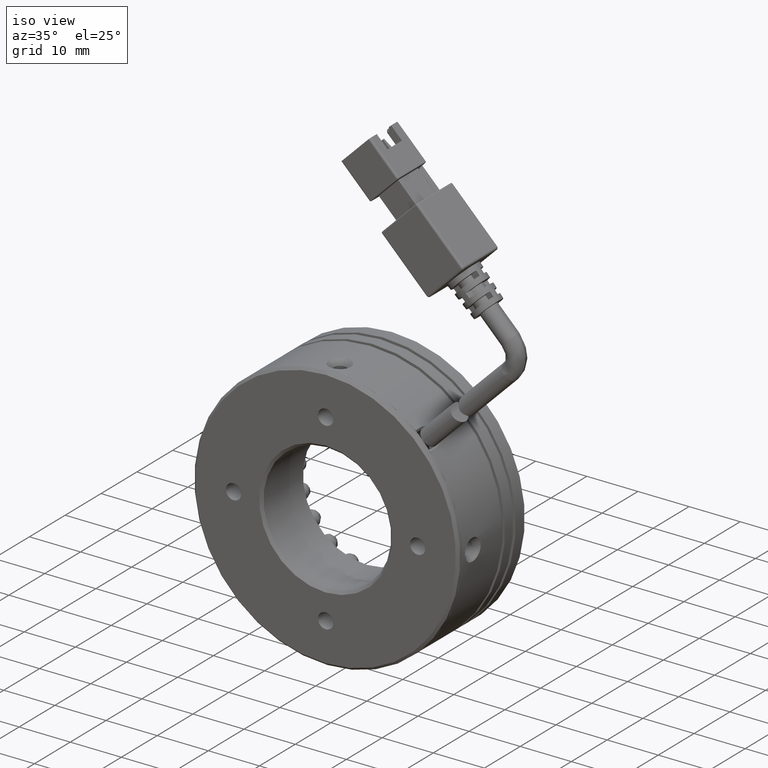
[diagram: clean part render]
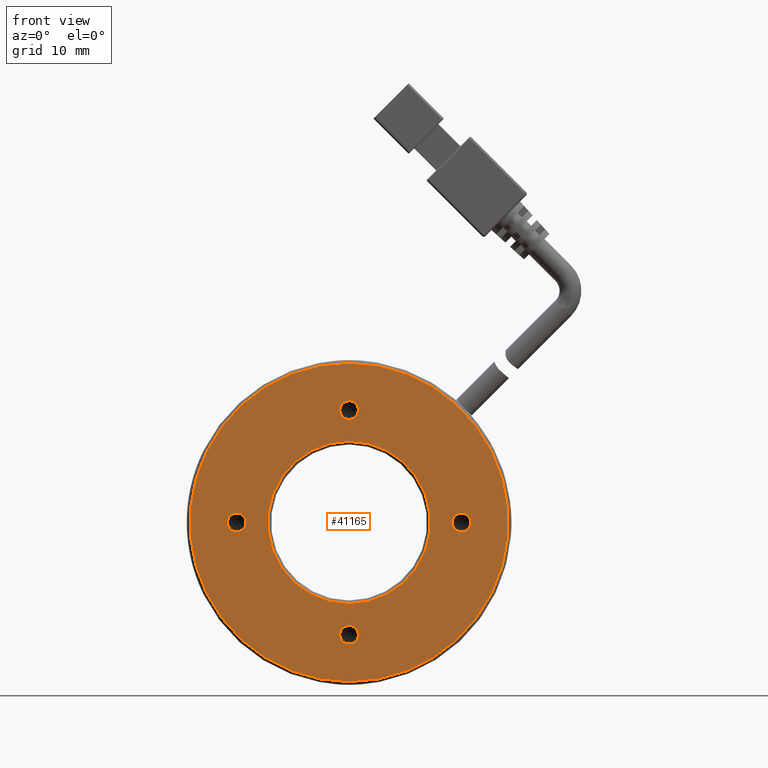
[diagram: tour spotlight — one face highlighted and labeled with its STEP entity id]
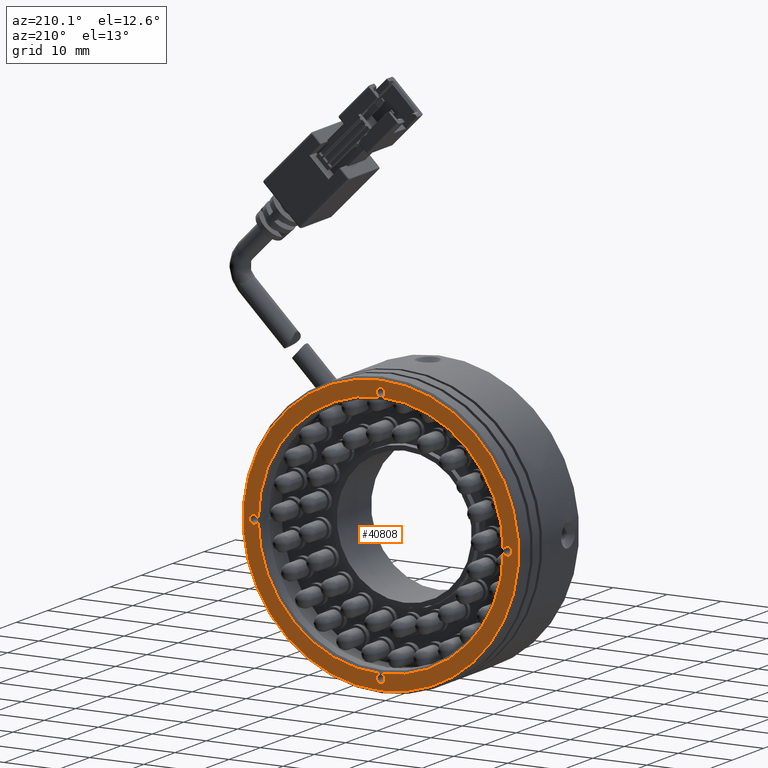
[diagram: tour spotlight — one face highlighted and labeled with its STEP entity id]
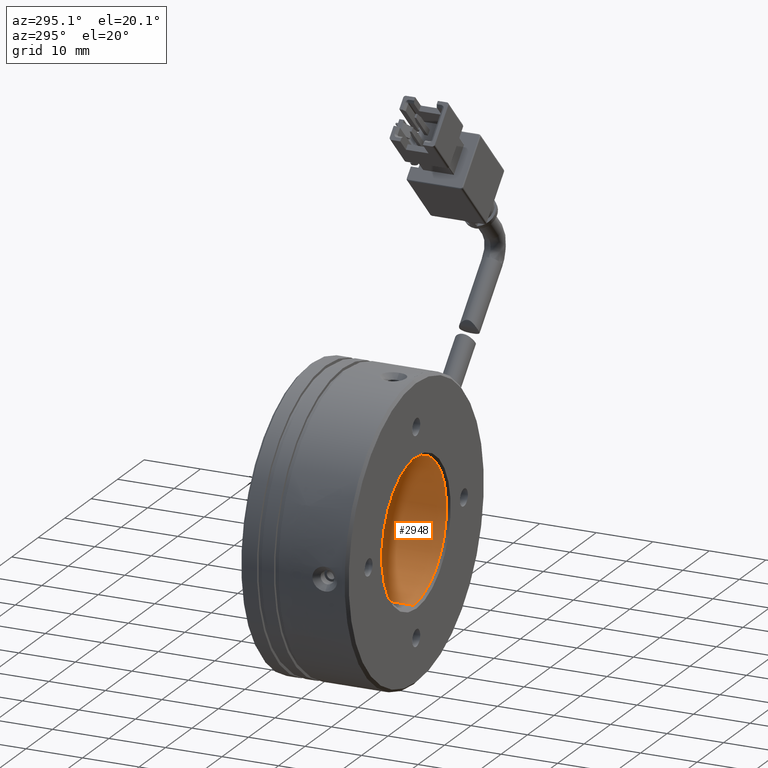
[diagram: tour spotlight — one face highlighted and labeled with its STEP entity id]
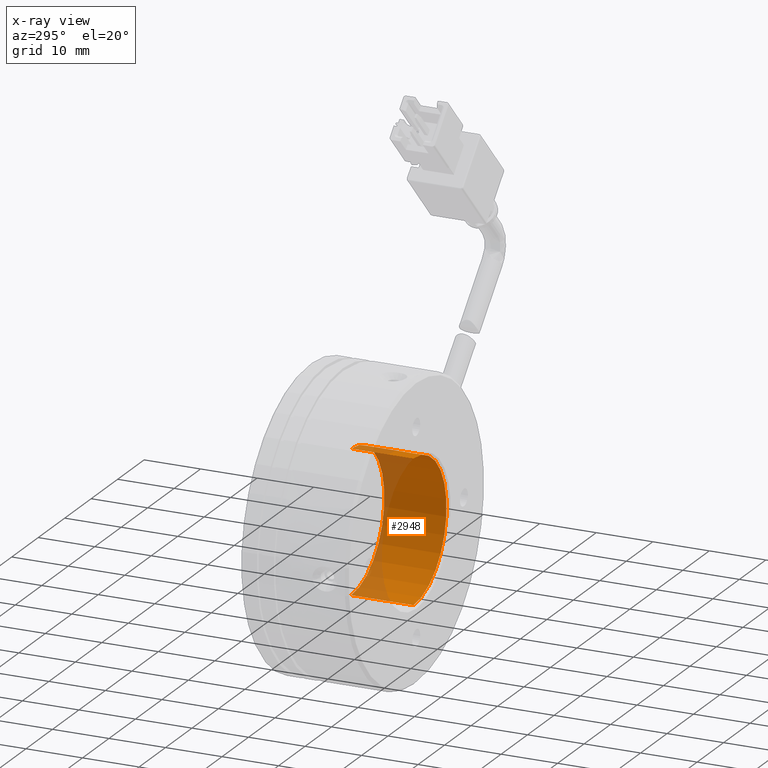
[diagram: x-ray of the same camera — body ghosted, this tour face saturated]
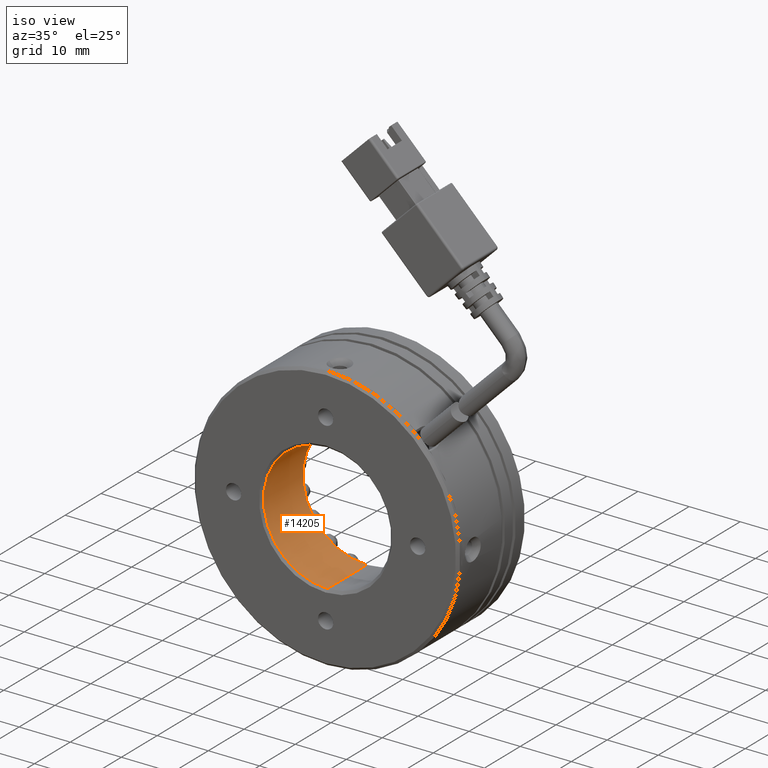
[diagram: tour spotlight — one face highlighted and labeled with its STEP entity id]
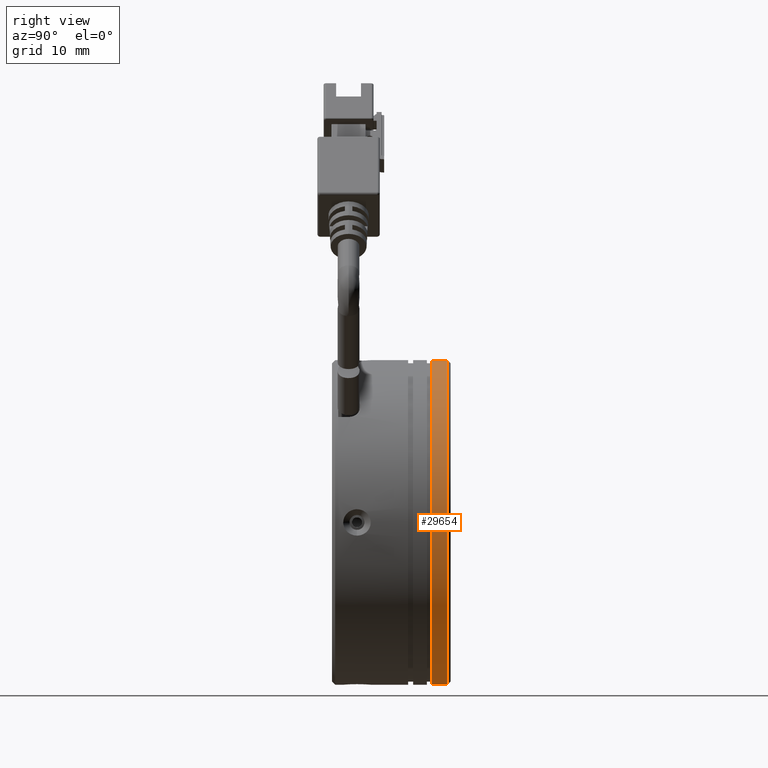
[diagram: tour spotlight — one face highlighted and labeled with its STEP entity id]
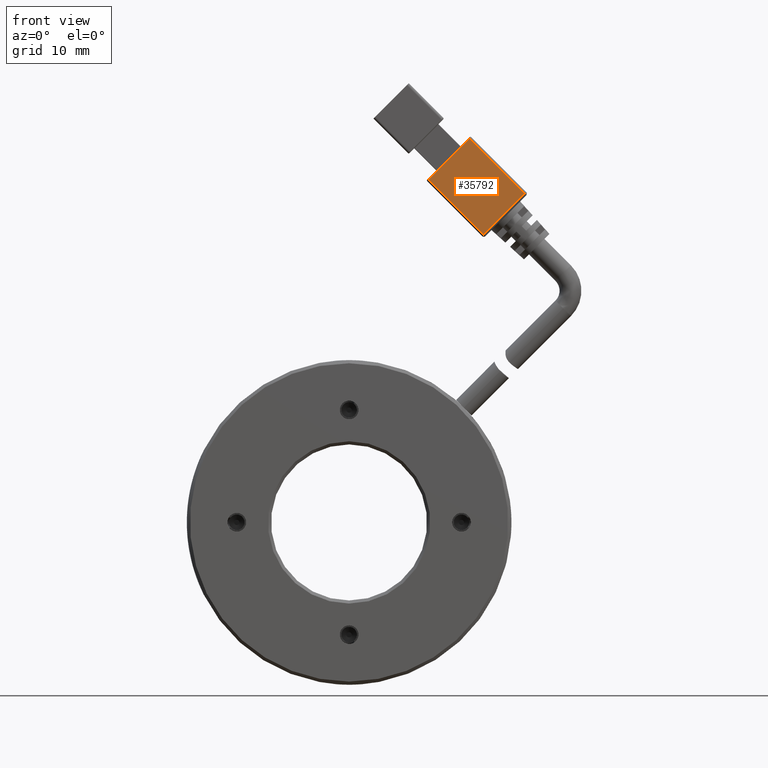
[diagram: tour spotlight — one face highlighted and labeled with its STEP entity id]
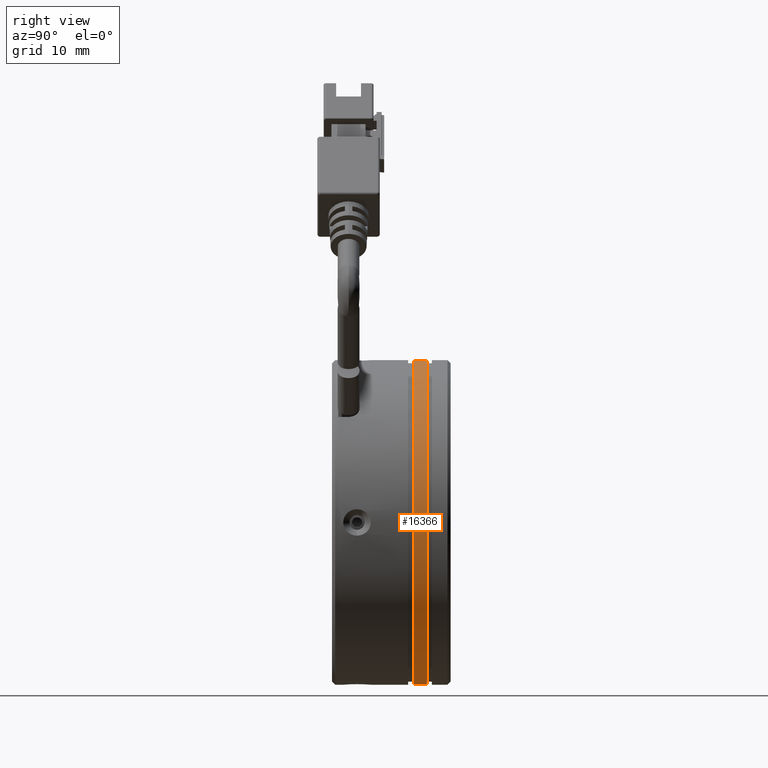
[diagram: tour spotlight — one face highlighted and labeled with its STEP entity id]
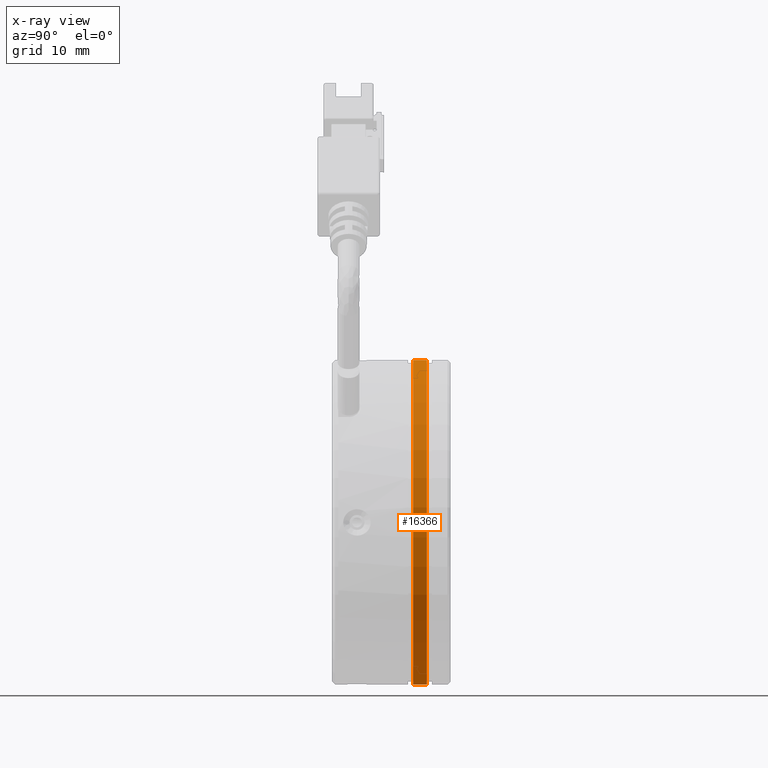
[diagram: x-ray of the same camera — body ghosted, this tour face saturated]
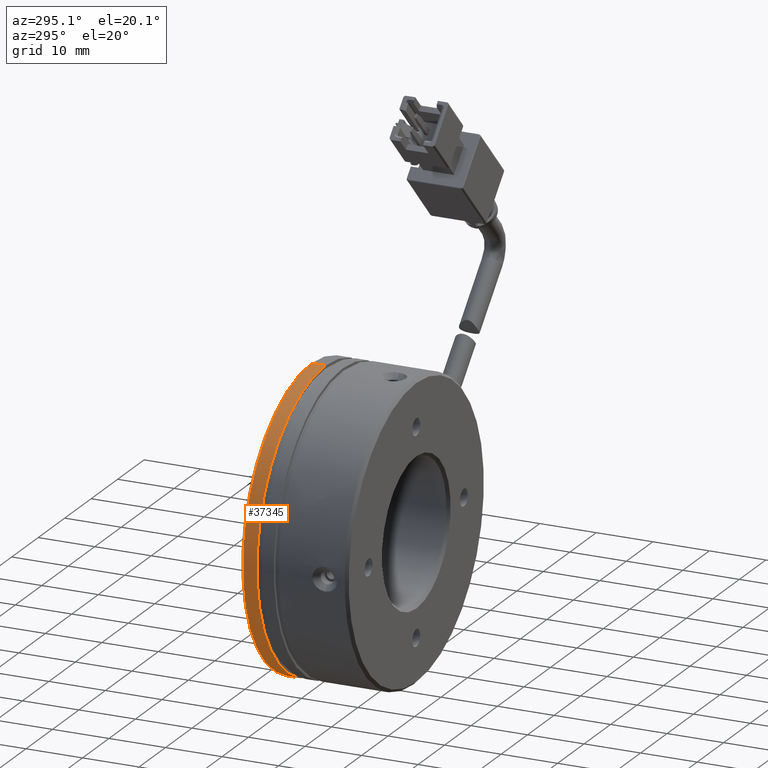
[diagram: tour spotlight — one face highlighted and labeled with its STEP entity id]
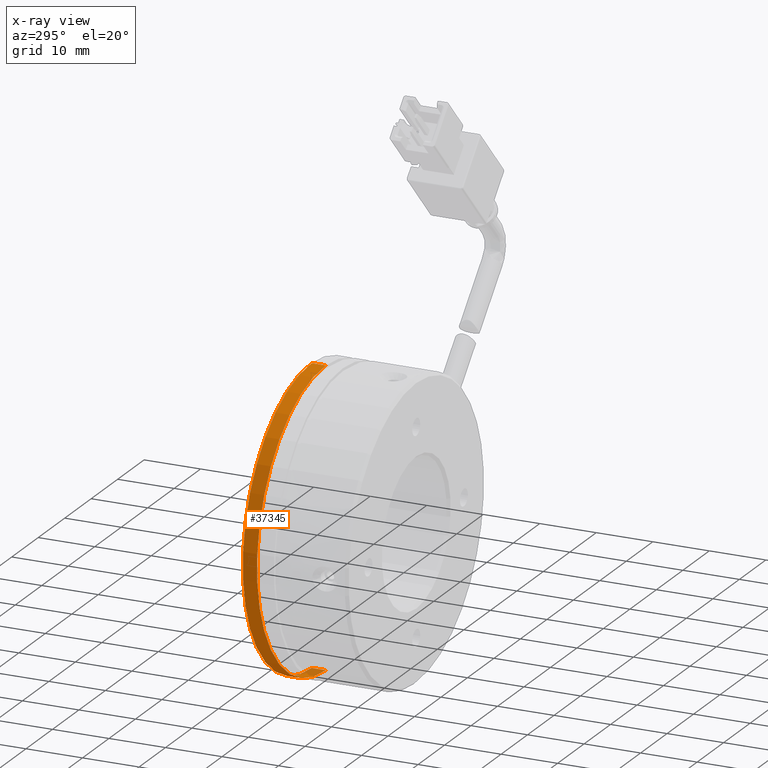
[diagram: x-ray of the same camera — body ghosted, this tour face saturated]
A machine part: a face-by-face anatomy tour. The part has 1320 B-rep faces; the first image is the clean iso view, then the 8 largest visible faces are spotlighted one at a time (largest first), each with its STEP entity span.

Face 1 — front view, entity #41165. In plain terms, the highlighted planar face has unit normal (0, 1, 0).
Definition (entity closure, byte-faithful):
#44 = DIRECTION ( 'NONE',  ( -0.0000000000000000000, 1.000000000000000000, 0.0000000000000000000 ) ) ;
#1009 = CARTESIAN_POINT ( 'NONE',  ( -18.84323647674537800, -6.019923829761832000, -1.500000000000183200 ) ) ;
#1108 = ORIENTED_EDGE ( 'NONE', *, *, #46173, .F. ) ;
#1158 = EDGE_CURVE ( 'NONE', #1927, #31905, #40717, .T. ) ;
#1733 = VERTEX_POINT ( 'NONE', #17136 ) ;
#1927 = VERTEX_POINT ( 'NONE', #43849 ) ;
#2375 = CARTESIAN_POINT ( 'NONE',  ( -18.84323647674537800, -6.019923829761832000, -1.888712825546119400E-013 ) ) ;
#2629 = DIRECTION ( 'NONE',  ( -0.0000000000000000000, -1.000000000000000000, -0.0000000000000000000 ) ) ;
#3282 = FACE_BOUND ( 'NONE', #45213, .T. ) ;
#4542 = DIRECTION ( 'NONE',  ( -0.0000000000000000000, -1.000000000000000000, -0.0000000000000000000 ) ) ;
#5643 = VERTEX_POINT ( 'NONE', #6174 ) ;
#5941 = CARTESIAN_POINT ( 'NONE',  ( -26.84323647674538900, -6.019923829761832000, 0.0000000000000000000 ) ) ;
#6149 = DIRECTION ( 'NONE',  ( 0.0000000000000000000, 0.0000000000000000000, -1.000000000000000000 ) ) ;
#6174 = CARTESIAN_POINT ( 'NONE',  ( -0.8432364767453765000, -6.019923829761832000, 25.50000000000002500 ) ) ;
#6604 = DIRECTION ( 'NONE',  ( 0.0000000000000000000, -1.000000000000000000, 0.0000000000000000000 ) ) ;
#7289 = CIRCLE ( 'NONE', #32393, 1.499999999999994400 ) ;
#7480 = DIRECTION ( 'NONE',  ( -0.0000000000000000000, -1.000000000000000000, -0.0000000000000000000 ) ) ;
#7697 = DIRECTION ( 'NONE',  ( 0.0000000000000000000, 0.0000000000000000000, -1.000000000000000000 ) ) ;
#7847 = DIRECTION ( 'NONE',  ( -0.0000000000000000000, -1.000000000000000000, -0.0000000000000000000 ) ) ;
#8003 = CARTESIAN_POINT ( 'NONE',  ( 17.15676352325462500, -6.019923829761832000, 6.317795435625916900E-014 ) ) ;
#8361 = EDGE_CURVE ( 'NONE', #14001, #26284, #27367, .T. ) ;
#9270 = EDGE_CURVE ( 'NONE', #25709, #31487, #18213, .T. ) ;
#9484 = AXIS2_PLACEMENT_3D ( 'NONE', #22586, #44, #26321 ) ;
#9728 = DIRECTION ( 'NONE',  ( 0.0000000000000000000, -0.0000000000000000000, 1.000000000000000000 ) ) ;
#10104 = ORIENTED_EDGE ( 'NONE', *, *, #16305, .F. ) ;
#10370 = AXIS2_PLACEMENT_3D ( 'NONE', #30033, #7480, #33812 ) ;
#11272 = CARTESIAN_POINT ( 'NONE',  ( -0.8432364767453765000, -6.019923829761832000, 0.0000000000000000000 ) ) ;
#12603 = CARTESIAN_POINT ( 'NONE',  ( -0.8432364767453748300, -6.019923829761832000, 13.00000000000000500 ) ) ;
#12787 = EDGE_CURVE ( 'NONE', #5643, #1733, #32592, .T. ) ;
#13080 = CARTESIAN_POINT ( 'NONE',  ( -18.84323647674537800, -6.019923829761832000, 1.499999999999805500 ) ) ;
#13190 = AXIS2_PLACEMENT_3D ( 'NONE', #27068, #4542, #30866 ) ;
#13293 = FACE_BOUND ( 'NONE', #14123, .T. ) ;
#13651 = CARTESIAN_POINT ( 'NONE',  ( -0.8432364767453761600, -6.019923829761832000, -18.00000000000000400 ) ) ;
#14001 = VERTEX_POINT ( 'NONE', #1009 ) ;
#14123 = EDGE_LOOP ( 'NONE', ( #30156, #26780 ) ) ;
#14482 = FACE_BOUND ( 'NONE', #17617, .T. ) ;
#14501 = DIRECTION ( 'NONE',  ( 0.0000000000000000000, -1.000000000000000000, 0.0000000000000000000 ) ) ;
#15006 = DIRECTION ( 'NONE',  ( 0.0000000000000000000, 0.0000000000000000000, 1.000000000000000000 ) ) ;
#15301 = AXIS2_PLACEMENT_3D ( 'NONE', #37044, #14501, #40896 ) ;
#16305 = EDGE_CURVE ( 'NONE', #22634, #42312, #37870, .T. ) ;
#17136 = CARTESIAN_POINT ( 'NONE',  ( -0.8432364767453733900, -6.019923829761832000, -25.50000000000002500 ) ) ;
#17425 = DIRECTION ( 'NONE',  ( 0.0000000000000000000, 0.0000000000000000000, -1.000000000000000000 ) ) ;
#17617 = EDGE_LOOP ( 'NONE', ( #10104, #1108 ) ) ;
#17662 = DIRECTION ( 'NONE',  ( -0.0000000000000000000, -1.000000000000000000, -0.0000000000000000000 ) ) ;
#18213 = CIRCLE ( 'NONE', #29133, 1.499999999999994400 ) ;
#18632 = CIRCLE ( 'NONE', #9484, 25.50000000000002500 ) ;
#19310 = DIRECTION ( 'NONE',  ( -0.0000000000000000000, -1.000000000000000000, -0.0000000000000000000 ) ) ;
#19537 = ORIENTED_EDGE ( 'NONE', *, *, #33362, .F. ) ;
#21739 = CIRCLE ( 'NONE', #10370, 1.499999999999994400 ) ;
#21917 = ORIENTED_EDGE ( 'NONE', *, *, #9270, .F. ) ;
#22157 = VERTEX_POINT ( 'NONE', #44383 ) ;
#22259 = ORIENTED_EDGE ( 'NONE', *, *, #8361, .F. ) ;
#22403 = EDGE_CURVE ( 'NONE', #34573, #22157, #44169, .T. ) ;
#22426 = ORIENTED_EDGE ( 'NONE', *, *, #12787, .F. ) ;
#22552 = CARTESIAN_POINT ( 'NONE',  ( -0.8432364767455025100, -6.019923829761832000, 16.50000000000000700 ) ) ;
#22586 = CARTESIAN_POINT ( 'NONE',  ( -0.8432364767453765000, -6.019923829761832000, 0.0000000000000000000 ) ) ;
#22592 = AXIS2_PLACEMENT_3D ( 'NONE', #25152, #2629, #28956 ) ;
#22634 = VERTEX_POINT ( 'NONE', #45481 ) ;
#23258 = FACE_BOUND ( 'NONE', #37103, .T. ) ;
#24760 = CIRCLE ( 'NONE', #44174, 13.00000000000000500 ) ;
#24920 = CARTESIAN_POINT ( 'NONE',  ( -0.8432364767453759400, -6.019923829761832000, -16.50000000000000700 ) ) ;
#25152 = CARTESIAN_POINT ( 'NONE',  ( -0.8432364767455025100, -6.019923829761832000, 18.00000000000000400 ) ) ;
#25364 = ORIENTED_EDGE ( 'NONE', *, *, #40909, .F. ) ;
#25478 = EDGE_CURVE ( 'NONE', #26284, #14001, #37301, .T. ) ;
#25709 = VERTEX_POINT ( 'NONE', #24920 ) ;
#26142 = AXIS2_PLACEMENT_3D ( 'NONE', #11272, #37553, #15006 ) ;
#26284 = VERTEX_POINT ( 'NONE', #13080 ) ;
#26321 = DIRECTION ( 'NONE',  ( 0.0000000000000000000, 0.0000000000000000000, 1.000000000000000000 ) ) ;
#26485 = ORIENTED_EDGE ( 'NONE', *, *, #25478, .F. ) ;
#26780 = ORIENTED_EDGE ( 'NONE', *, *, #39148, .F. ) ;
#26805 = AXIS2_PLACEMENT_3D ( 'NONE', #41929, #19310, #45700 ) ;
#27068 = CARTESIAN_POINT ( 'NONE',  ( -18.84323647674537800, -6.019923829761832000, -1.888712825546119400E-013 ) ) ;
#27367 = CIRCLE ( 'NONE', #30649, 1.499999999999994400 ) ;
#28161 = ORIENTED_EDGE ( 'NONE', *, *, #42670, .F. ) ;
#28333 = CARTESIAN_POINT ( 'NONE',  ( 17.15676352325462500, -6.019923829761832000, 1.500000000000057500 ) ) ;
#28452 = CARTESIAN_POINT ( 'NONE',  ( -0.8432364767453765000, -6.019923829761832000, 0.0000000000000000000 ) ) ;
#28679 = DIRECTION ( 'NONE',  ( -0.0000000000000000000, -1.000000000000000000, -0.0000000000000000000 ) ) ;
#28716 = CARTESIAN_POINT ( 'NONE',  ( -0.8432364767453761600, -6.019923829761832000, -19.49999999999999600 ) ) ;
#28742 = EDGE_LOOP ( 'NONE', ( #47955, #19537 ) ) ;
#28956 = DIRECTION ( 'NONE',  ( 0.0000000000000000000, 0.0000000000000000000, -1.000000000000000000 ) ) ;
#29133 = AXIS2_PLACEMENT_3D ( 'NONE', #13651, #39992, #17425 ) ;
#30033 = CARTESIAN_POINT ( 'NONE',  ( 17.15676352325462500, -6.019923829761832000, 6.317795435625916900E-014 ) ) ;
#30156 = ORIENTED_EDGE ( 'NONE', *, *, #22403, .F. ) ;
#30649 = AXIS2_PLACEMENT_3D ( 'NONE', #2375, #28679, #6149 ) ;
#30866 = DIRECTION ( 'NONE',  ( 0.0000000000000000000, 0.0000000000000000000, -1.000000000000000000 ) ) ;
#31487 = VERTEX_POINT ( 'NONE', #28716 ) ;
#31905 = VERTEX_POINT ( 'NONE', #28333 ) ;
#31977 = CIRCLE ( 'NONE', #26805, 1.499999999999994400 ) ;
#32089 = PLANE ( 'NONE',  #38846 ) ;
#32251 = DIRECTION ( 'NONE',  ( 0.0000000000000000000, 1.000000000000000000, 0.0000000000000000000 ) ) ;
#32393 = AXIS2_PLACEMENT_3D ( 'NONE', #40236, #17662, #44026 ) ;
#32592 = CIRCLE ( 'NONE', #26142, 25.50000000000002500 ) ;
#32912 = DIRECTION ( 'NONE',  ( 0.0000000000000000000, 0.0000000000000000000, -1.000000000000000000 ) ) ;
#33261 = AXIS2_PLACEMENT_3D ( 'NONE', #8003, #7847, #7697 ) ;
#33292 = FACE_BOUND ( 'NONE', #28742, .T. ) ;
#33362 = EDGE_CURVE ( 'NONE', #31905, #1927, #21739, .T. ) ;
#33812 = DIRECTION ( 'NONE',  ( 0.0000000000000000000, 0.0000000000000000000, -1.000000000000000000 ) ) ;
#34573 = VERTEX_POINT ( 'NONE', #22552 ) ;
#35672 = EDGE_LOOP ( 'NONE', ( #22426, #25364 ) ) ;
#37044 = CARTESIAN_POINT ( 'NONE',  ( -0.8432364767453765000, -6.019923829761832000, 0.0000000000000000000 ) ) ;
#37103 = EDGE_LOOP ( 'NONE', ( #28161, #21917 ) ) ;
#37301 = CIRCLE ( 'NONE', #13190, 1.499999999999994400 ) ;
#37553 = DIRECTION ( 'NONE',  ( -0.0000000000000000000, 1.000000000000000000, 0.0000000000000000000 ) ) ;
#37870 = CIRCLE ( 'NONE', #15301, 13.00000000000000500 ) ;
#38846 = AXIS2_PLACEMENT_3D ( 'NONE', #5941, #32251, #9728 ) ;
#39148 = EDGE_CURVE ( 'NONE', #22157, #34573, #7289, .T. ) ;
#39992 = DIRECTION ( 'NONE',  ( -0.0000000000000000000, -1.000000000000000000, -0.0000000000000000000 ) ) ;
#40236 = CARTESIAN_POINT ( 'NONE',  ( -0.8432364767455025100, -6.019923829761832000, 18.00000000000000400 ) ) ;
#40717 = CIRCLE ( 'NONE', #33261, 1.499999999999994400 ) ;
#40896 = DIRECTION ( 'NONE',  ( 0.0000000000000000000, 0.0000000000000000000, -1.000000000000000000 ) ) ;
#40909 = EDGE_CURVE ( 'NONE', #1733, #5643, #18632, .T. ) ;
#41165 = ADVANCED_FACE ( 'NONE', ( #23258, #33292, #13293, #3282, #14482, #42188 ), #32089, .F. ) ;
#41929 = CARTESIAN_POINT ( 'NONE',  ( -0.8432364767453761600, -6.019923829761832000, -18.00000000000000400 ) ) ;
#42188 = FACE_OUTER_BOUND ( 'NONE', #35672, .T. ) ;
#42312 = VERTEX_POINT ( 'NONE', #12603 ) ;
#42670 = EDGE_CURVE ( 'NONE', #31487, #25709, #31977, .T. ) ;
#43849 = CARTESIAN_POINT ( 'NONE',  ( 17.15676352325462500, -6.019923829761832000, -1.499999999999931400 ) ) ;
#44026 = DIRECTION ( 'NONE',  ( 0.0000000000000000000, 0.0000000000000000000, -1.000000000000000000 ) ) ;
#44169 = CIRCLE ( 'NONE', #22592, 1.499999999999994400 ) ;
#44174 = AXIS2_PLACEMENT_3D ( 'NONE', #28452, #6604, #32912 ) ;
#44383 = CARTESIAN_POINT ( 'NONE',  ( -0.8432364767455022800, -6.019923829761832000, 19.49999999999999600 ) ) ;
#45213 = EDGE_LOOP ( 'NONE', ( #22259, #26485 ) ) ;
#45481 = CARTESIAN_POINT ( 'NONE',  ( -0.8432364767453765000, -6.019923829761832000, -13.00000000000000500 ) ) ;
#45700 = DIRECTION ( 'NONE',  ( 0.0000000000000000000, 0.0000000000000000000, -1.000000000000000000 ) ) ;
#46173 = EDGE_CURVE ( 'NONE', #42312, #22634, #24760, .T. ) ;
#47955 = ORIENTED_EDGE ( 'NONE', *, *, #1158, .F. ) ;

Face 2 — auxiliary view, entity #40808. In plain terms, the highlighted planar face has unit normal (0, -1, 0).
Definition (entity closure, byte-faithful):
#49 = ORIENTED_EDGE ( 'NONE', *, *, #13771, .T. ) ;
#149 = CIRCLE ( 'NONE', #25584, 0.7999999999999951600 ) ;
#343 = ORIENTED_EDGE ( 'NONE', *, *, #23468, .T. ) ;
#373 = FACE_OUTER_BOUND ( 'NONE', #15201, .T. ) ;
#458 = DIRECTION ( 'NONE',  ( 0.0000000000000000000, 0.0000000000000000000, -1.000000000000000000 ) ) ;
#753 = CARTESIAN_POINT ( 'NONE',  ( 22.65676352325462500, 12.98007617023817100, 2.461494343884408700E-013 ) ) ;
#1233 = CARTESIAN_POINT ( 'NONE',  ( -0.8432364767453791600, 12.98007617023817800, 22.69999999999999900 ) ) ;
#1565 = EDGE_CURVE ( 'NONE', #2536, #27237, #7570, .T. ) ;
#2222 = CARTESIAN_POINT ( 'NONE',  ( -24.34323647674537500, 12.98007617023817100, -8.204981146281364000E-014 ) ) ;
#2238 = ORIENTED_EDGE ( 'NONE', *, *, #24066, .F. ) ;
#2248 = EDGE_CURVE ( 'NONE', #16182, #27237, #13358, .T. ) ;
#2536 = VERTEX_POINT ( 'NONE', #21174 ) ;
#2613 = ORIENTED_EDGE ( 'NONE', *, *, #4683, .T. ) ;
#2838 = DIRECTION ( 'NONE',  ( 0.0000000000000000000, -1.000000000000000000, 0.0000000000000000000 ) ) ;
#2915 = AXIS2_PLACEMENT_3D ( 'NONE', #7733, #34054, #11566 ) ;
#3604 = CARTESIAN_POINT ( 'NONE',  ( -0.8432364767453765000, 12.98007617023817100, -25.49999999999999600 ) ) ;
#3695 = EDGE_LOOP ( 'NONE', ( #12994, #19662 ) ) ;
#4232 = DIRECTION ( 'NONE',  ( 0.0000000000000000000, -1.000000000000000000, 0.0000000000000000000 ) ) ;
#4540 = DIRECTION ( 'NONE',  ( 0.0000000000000000000, 0.0000000000000000000, 1.000000000000000000 ) ) ;
#4683 = EDGE_CURVE ( 'NONE', #12566, #43846, #34050, .T. ) ;
#5130 = DIRECTION ( 'NONE',  ( 0.0000000000000000000, -1.000000000000000000, 0.0000000000000000000 ) ) ;
#5417 = EDGE_CURVE ( 'NONE', #30205, #12566, #38438, .T. ) ;
#5717 = CIRCLE ( 'NONE', #38021, 0.7999999999999951600 ) ;
#5807 = CARTESIAN_POINT ( 'NONE',  ( -23.54323647674537400, 12.98007617023817100, -8.203657462580361600E-014 ) ) ;
#5935 = CARTESIAN_POINT ( 'NONE',  ( -24.34323647674537500, 12.98007617023817100, -0.8000000000000755400 ) ) ;
#6015 = DIRECTION ( 'NONE',  ( 0.0000000000000000000, 0.0000000000000000000, 1.000000000000000000 ) ) ;
#6032 = AXIS2_PLACEMENT_3D ( 'NONE', #10427, #36740, #14214 ) ;
#6454 = DIRECTION ( 'NONE',  ( 0.0000000000000000000, -1.000000000000000000, 0.0000000000000000000 ) ) ;
#7560 = EDGE_CURVE ( 'NONE', #43846, #30205, #17572, .T. ) ;
#7570 = CIRCLE ( 'NONE', #20370, 22.69999999999999600 ) ;
#7733 = CARTESIAN_POINT ( 'NONE',  ( -0.8432364767453765000, 12.98007617023817100, 0.0000000000000000000 ) ) ;
#8020 = DIRECTION ( 'NONE',  ( 0.0000000000000000000, 0.0000000000000000000, 1.000000000000000000 ) ) ;
#8654 = DIRECTION ( 'NONE',  ( 0.0000000000000000000, -1.000000000000000000, 0.0000000000000000000 ) ) ;
#8826 = CARTESIAN_POINT ( 'NONE',  ( 22.65676352325462500, 12.98007617023817100, 2.461494343884408700E-013 ) ) ;
#9249 = ORIENTED_EDGE ( 'NONE', *, *, #47810, .F. ) ;
#9903 = EDGE_CURVE ( 'NONE', #32028, #26124, #5717, .T. ) ;
#10350 = EDGE_CURVE ( 'NONE', #13269, #38562, #44013, .T. ) ;
#10427 = CARTESIAN_POINT ( 'NONE',  ( -0.8432364767453765000, 12.98007617023817100, 0.0000000000000000000 ) ) ;
#10619 = CARTESIAN_POINT ( 'NONE',  ( -26.84323647674537800, 12.98007617023817100, 0.0000000000000000000 ) ) ;
#10840 = DIRECTION ( 'NONE',  ( 0.0000000000000000000, 0.0000000000000000000, 1.000000000000000000 ) ) ;
#10998 = DIRECTION ( 'NONE',  ( 0.0000000000000000000, 1.000000000000000000, 0.0000000000000000000 ) ) ;
#11324 = DIRECTION ( 'NONE',  ( 0.0000000000000000000, -1.000000000000000000, 0.0000000000000000000 ) ) ;
#11497 = CARTESIAN_POINT ( 'NONE',  ( -0.8432364767453765000, 12.98007617023817100, 0.0000000000000000000 ) ) ;
#11566 = DIRECTION ( 'NONE',  ( 0.0000000000000000000, 0.0000000000000000000, 1.000000000000000000 ) ) ;
#11921 = CIRCLE ( 'NONE', #2915, 22.69999999999999600 ) ;
#11975 = ORIENTED_EDGE ( 'NONE', *, *, #43140, .F. ) ;
#12115 = ORIENTED_EDGE ( 'NONE', *, *, #1565, .F. ) ;
#12566 = VERTEX_POINT ( 'NONE', #47178 ) ;
#12893 = ORIENTED_EDGE ( 'NONE', *, *, #5417, .T. ) ;
#12994 = ORIENTED_EDGE ( 'NONE', *, *, #47760, .T. ) ;
#13269 = VERTEX_POINT ( 'NONE', #3604 ) ;
#13320 = CIRCLE ( 'NONE', #29152, 25.49999999999999600 ) ;
#13358 = CIRCLE ( 'NONE', #39364, 0.7999999999999933800 ) ;
#13369 = EDGE_CURVE ( 'NONE', #15481, #23114, #149, .T. ) ;
#13771 = EDGE_CURVE ( 'NONE', #23114, #15481, #28298, .T. ) ;
#14214 = DIRECTION ( 'NONE',  ( 0.0000000000000000000, 0.0000000000000000000, 1.000000000000000000 ) ) ;
#14229 = PLANE ( 'NONE',  #33120 ) ;
#14260 = DIRECTION ( 'NONE',  ( 0.0000000000000000000, -1.000000000000000000, 0.0000000000000000000 ) ) ;
#14390 = DIRECTION ( 'NONE',  ( 0.0000000000000000000, -0.0000000000000000000, -1.000000000000000000 ) ) ;
#15201 = EDGE_LOOP ( 'NONE', ( #43411, #2238 ) ) ;
#15354 = DIRECTION ( 'NONE',  ( 0.0000000000000000000, 0.0000000000000000000, 1.000000000000000000 ) ) ;
#15466 = AXIS2_PLACEMENT_3D ( 'NONE', #8826, #8654, #8020 ) ;
#15481 = VERTEX_POINT ( 'NONE', #1233 ) ;
#15853 = CARTESIAN_POINT ( 'NONE',  ( -0.8432364767453765000, 12.98007617023817100, -22.70000000000000600 ) ) ;
#15983 = DIRECTION ( 'NONE',  ( 0.0000000000000000000, -1.000000000000000000, 0.0000000000000000000 ) ) ;
#15992 = CIRCLE ( 'NONE', #44524, 22.69999999999999600 ) ;
#16144 = DIRECTION ( 'NONE',  ( 0.0000000000000000000, 1.000000000000000000, 0.0000000000000000000 ) ) ;
#16150 = CARTESIAN_POINT ( 'NONE',  ( -24.34323647674537500, 12.98007617023817100, -8.204981146281364000E-014 ) ) ;
#16182 = VERTEX_POINT ( 'NONE', #5935 ) ;
#16503 = CIRCLE ( 'NONE', #42357, 0.7999999999999951600 ) ;
#17483 = CIRCLE ( 'NONE', #19357, 0.7999999999999933800 ) ;
#17572 = CIRCLE ( 'NONE', #23614, 0.7999999999999933800 ) ;
#18668 = CARTESIAN_POINT ( 'NONE',  ( -24.34323647674537500, 12.98007617023817100, -8.204981146281364000E-014 ) ) ;
#19357 = AXIS2_PLACEMENT_3D ( 'NONE', #2222, #28522, #6015 ) ;
#19485 = AXIS2_PLACEMENT_3D ( 'NONE', #18668, #45046, #22446 ) ;
#19662 = ORIENTED_EDGE ( 'NONE', *, *, #9903, .T. ) ;
#20370 = AXIS2_PLACEMENT_3D ( 'NONE', #11497, #10998, #10840 ) ;
#21174 = CARTESIAN_POINT ( 'NONE',  ( -0.8432364767453737200, 12.98007617023817100, -22.69999999999999600 ) ) ;
#21947 = CARTESIAN_POINT ( 'NONE',  ( -0.8432364767453763800, 12.98007617023817100, -24.29999999999999400 ) ) ;
#22446 = DIRECTION ( 'NONE',  ( 0.0000000000000000000, 0.0000000000000000000, 1.000000000000000000 ) ) ;
#23016 = DIRECTION ( 'NONE',  ( 0.0000000000000000000, -1.000000000000000000, 0.0000000000000000000 ) ) ;
#23114 = VERTEX_POINT ( 'NONE', #41479 ) ;
#23468 = EDGE_CURVE ( 'NONE', #27237, #23788, #36258, .T. ) ;
#23614 = AXIS2_PLACEMENT_3D ( 'NONE', #27639, #5130, #31451 ) ;
#23788 = VERTEX_POINT ( 'NONE', #39885 ) ;
#24066 = EDGE_CURVE ( 'NONE', #38562, #13269, #13320, .T. ) ;
#24245 = CARTESIAN_POINT ( 'NONE',  ( 22.65676352325462500, 12.98007617023817100, -0.7999999999997473600 ) ) ;
#25371 = CARTESIAN_POINT ( 'NONE',  ( -0.8432364767453765000, 12.98007617023817100, -23.50000000000000000 ) ) ;
#25584 = AXIS2_PLACEMENT_3D ( 'NONE', #26734, #4232, #30543 ) ;
#26124 = VERTEX_POINT ( 'NONE', #15853 ) ;
#26734 = CARTESIAN_POINT ( 'NONE',  ( -0.8432364767453765000, 12.98007617023817100, 23.50000000000000000 ) ) ;
#27065 = DIRECTION ( 'NONE',  ( 0.0000000000000000000, -1.000000000000000000, 0.0000000000000000000 ) ) ;
#27071 = ORIENTED_EDGE ( 'NONE', *, *, #13369, .T. ) ;
#27237 = VERTEX_POINT ( 'NONE', #5807 ) ;
#27605 = ORIENTED_EDGE ( 'NONE', *, *, #2248, .T. ) ;
#27639 = CARTESIAN_POINT ( 'NONE',  ( 22.65676352325462500, 12.98007617023817100, 2.461494343884408700E-013 ) ) ;
#28060 = ORIENTED_EDGE ( 'NONE', *, *, #32408, .F. ) ;
#28298 = CIRCLE ( 'NONE', #46493, 0.7999999999999951600 ) ;
#28522 = DIRECTION ( 'NONE',  ( 0.0000000000000000000, -1.000000000000000000, 0.0000000000000000000 ) ) ;
#28993 = CARTESIAN_POINT ( 'NONE',  ( -0.8432364767453765000, 12.98007617023817100, -23.50000000000000000 ) ) ;
#29152 = AXIS2_PLACEMENT_3D ( 'NONE', #45644, #23016, #458 ) ;
#29168 = DIRECTION ( 'NONE',  ( 0.0000000000000000000, 0.0000000000000000000, 1.000000000000000000 ) ) ;
#29234 = FACE_BOUND ( 'NONE', #3695, .T. ) ;
#30205 = VERTEX_POINT ( 'NONE', #42428 ) ;
#30543 = DIRECTION ( 'NONE',  ( 9.486769009248221000E-016, 0.0000000000000000000, 1.000000000000000000 ) ) ;
#31451 = DIRECTION ( 'NONE',  ( 0.0000000000000000000, 0.0000000000000000000, 1.000000000000000000 ) ) ;
#32028 = VERTEX_POINT ( 'NONE', #21947 ) ;
#32408 = EDGE_CURVE ( 'NONE', #15481, #12566, #15992, .T. ) ;
#32746 = DIRECTION ( 'NONE',  ( 0.0000000000000000000, 0.0000000000000000000, 1.000000000000000000 ) ) ;
#33120 = AXIS2_PLACEMENT_3D ( 'NONE', #10619, #36922, #14390 ) ;
#33804 = CARTESIAN_POINT ( 'NONE',  ( -0.8432364767453765000, 12.98007617023817100, 0.0000000000000000000 ) ) ;
#34050 = CIRCLE ( 'NONE', #15466, 0.7999999999999933800 ) ;
#34054 = DIRECTION ( 'NONE',  ( 0.0000000000000000000, 1.000000000000000000, 0.0000000000000000000 ) ) ;
#36171 = EDGE_LOOP ( 'NONE', ( #2613, #44552, #12893, #28060, #27071, #49, #11975, #343, #36472, #27605, #12115, #9249 ) ) ;
#36258 = CIRCLE ( 'NONE', #19485, 0.7999999999999933800 ) ;
#36472 = ORIENTED_EDGE ( 'NONE', *, *, #43909, .T. ) ;
#36740 = DIRECTION ( 'NONE',  ( 0.0000000000000000000, 1.000000000000000000, 0.0000000000000000000 ) ) ;
#36788 = CARTESIAN_POINT ( 'NONE',  ( -0.8432364767453765000, 12.98007617023817100, 23.50000000000000000 ) ) ;
#36922 = DIRECTION ( 'NONE',  ( 0.0000000000000000000, -1.000000000000000000, 0.0000000000000000000 ) ) ;
#36952 = AXIS2_PLACEMENT_3D ( 'NONE', #753, #27065, #4540 ) ;
#37614 = DIRECTION ( 'NONE',  ( 0.0000000000000000000, 0.0000000000000000000, -1.000000000000000000 ) ) ;
#38021 = AXIS2_PLACEMENT_3D ( 'NONE', #25371, #2838, #29168 ) ;
#38438 = CIRCLE ( 'NONE', #36952, 0.7999999999999933800 ) ;
#38562 = VERTEX_POINT ( 'NONE', #39271 ) ;
#38689 = CARTESIAN_POINT ( 'NONE',  ( -0.8432364767453765000, 12.98007617023817100, 0.0000000000000000000 ) ) ;
#39271 = CARTESIAN_POINT ( 'NONE',  ( -0.8432364767453733900, 12.98007617023817100, 25.49999999999999600 ) ) ;
#39294 = FACE_BOUND ( 'NONE', #36171, .T. ) ;
#39364 = AXIS2_PLACEMENT_3D ( 'NONE', #16150, #15983, #15354 ) ;
#39885 = CARTESIAN_POINT ( 'NONE',  ( -24.34323647674537500, 12.98007617023817100, 0.7999999999999113400 ) ) ;
#40640 = DIRECTION ( 'NONE',  ( 0.0000000000000000000, 0.0000000000000000000, 1.000000000000000000 ) ) ;
#40808 = ADVANCED_FACE ( 'NONE', ( #39294, #29234, #373 ), #14229, .F. ) ;
#41479 = CARTESIAN_POINT ( 'NONE',  ( -0.8432364767453765000, 12.98007617023817100, 24.29999999999999400 ) ) ;
#42357 = AXIS2_PLACEMENT_3D ( 'NONE', #28993, #6454, #32746 ) ;
#42428 = CARTESIAN_POINT ( 'NONE',  ( 22.65676352325462500, 12.98007617023817100, 0.8000000000002395200 ) ) ;
#42552 = DIRECTION ( 'NONE',  ( 0.0000000000000000000, 0.0000000000000000000, 1.000000000000000000 ) ) ;
#43140 = EDGE_CURVE ( 'NONE', #27237, #15481, #11921, .T. ) ;
#43411 = ORIENTED_EDGE ( 'NONE', *, *, #10350, .F. ) ;
#43846 = VERTEX_POINT ( 'NONE', #24245 ) ;
#43909 = EDGE_CURVE ( 'NONE', #23788, #16182, #17483, .T. ) ;
#44013 = CIRCLE ( 'NONE', #45347, 25.49999999999999600 ) ;
#44524 = AXIS2_PLACEMENT_3D ( 'NONE', #38689, #16144, #42552 ) ;
#44552 = ORIENTED_EDGE ( 'NONE', *, *, #7560, .T. ) ;
#45046 = DIRECTION ( 'NONE',  ( 0.0000000000000000000, -1.000000000000000000, 0.0000000000000000000 ) ) ;
#45347 = AXIS2_PLACEMENT_3D ( 'NONE', #33804, #11324, #37614 ) ;
#45408 = CIRCLE ( 'NONE', #6032, 22.69999999999999600 ) ;
#45644 = CARTESIAN_POINT ( 'NONE',  ( -0.8432364767453765000, 12.98007617023817100, 0.0000000000000000000 ) ) ;
#46493 = AXIS2_PLACEMENT_3D ( 'NONE', #36788, #14260, #40640 ) ;
#47178 = CARTESIAN_POINT ( 'NONE',  ( 21.85676352325462100, 12.98007617023817100, 2.378826635274850600E-013 ) ) ;
#47760 = EDGE_CURVE ( 'NONE', #26124, #32028, #16503, .T. ) ;
#47810 = EDGE_CURVE ( 'NONE', #12566, #2536, #45408, .T. ) ;

Face 3 — auxiliary view, entity #2948. An x-ray twin of the same camera follows (body ghosted, this face saturated) — the face is partly hidden behind the body. In plain terms, the highlighted cylindrical surface (partial cylindrical patch) has radius 12.5 mm, axis along (-0, -1, -0).
Definition (entity closure, byte-faithful):
#1301 = AXIS2_PLACEMENT_3D ( 'NONE', #7308, #33649, #11137 ) ;
#2948 = ADVANCED_FACE ( 'NONE', ( #12549 ), #17858, .F. ) ;
#5119 = EDGE_CURVE ( 'NONE', #17981, #28737, #26590, .T. ) ;
#6220 = DIRECTION ( 'NONE',  ( 0.0000000000000000000, 0.0000000000000000000, -1.000000000000000000 ) ) ;
#6727 = CIRCLE ( 'NONE', #1301, 12.50000000000000000 ) ;
#6838 = CARTESIAN_POINT ( 'NONE',  ( -0.8432364767453749400, 5.480076170238177700, 12.49999999999999800 ) ) ;
#6908 = CARTESIAN_POINT ( 'NONE',  ( -0.8432364767453765000, -37.47516192499993800, -12.49999999999999800 ) ) ;
#7231 = AXIS2_PLACEMENT_3D ( 'NONE', #16727, #43114, #20493 ) ;
#7308 = CARTESIAN_POINT ( 'NONE',  ( -0.8432364767453765000, -5.519923829761832000, 0.0000000000000000000 ) ) ;
#8424 = CARTESIAN_POINT ( 'NONE',  ( -0.8432364767453765000, -5.519923829761832000, -12.50000000000000000 ) ) ;
#9318 = DIRECTION ( 'NONE',  ( -0.0000000000000000000, -1.000000000000000000, -0.0000000000000000000 ) ) ;
#10727 = ORIENTED_EDGE ( 'NONE', *, *, #16624, .F. ) ;
#11137 = DIRECTION ( 'NONE',  ( 0.0000000000000000000, 0.0000000000000000000, -1.000000000000000000 ) ) ;
#12158 = EDGE_CURVE ( 'NONE', #17981, #33300, #34155, .T. ) ;
#12549 = FACE_OUTER_BOUND ( 'NONE', #34029, .T. ) ;
#15447 = ORIENTED_EDGE ( 'NONE', *, *, #12158, .F. ) ;
#16624 = EDGE_CURVE ( 'NONE', #33300, #38668, #32438, .T. ) ;
#16727 = CARTESIAN_POINT ( 'NONE',  ( -0.8432364767453765000, 5.480076170238177700, 0.0000000000000000000 ) ) ;
#17858 = CYLINDRICAL_SURFACE ( 'NONE', #22954, 12.49999999999999800 ) ;
#17981 = VERTEX_POINT ( 'NONE', #22272 ) ;
#20185 = EDGE_CURVE ( 'NONE', #28737, #38668, #6727, .T. ) ;
#20493 = DIRECTION ( 'NONE',  ( 0.0000000000000000000, 0.0000000000000000000, -1.000000000000000000 ) ) ;
#21551 = CARTESIAN_POINT ( 'NONE',  ( -0.8432364767453765000, -37.47516192499993800, 0.0000000000000000000 ) ) ;
#22272 = CARTESIAN_POINT ( 'NONE',  ( -0.8432364767453765000, 5.480076170238177700, -12.49999999999999800 ) ) ;
#22954 = AXIS2_PLACEMENT_3D ( 'NONE', #21551, #33364, #6220 ) ;
#24272 = CARTESIAN_POINT ( 'NONE',  ( -0.8432364767453749400, -37.47516192499993800, 12.49999999999999800 ) ) ;
#26590 = LINE ( 'NONE', #6908, #46703 ) ;
#28048 = DIRECTION ( 'NONE',  ( -0.0000000000000000000, -1.000000000000000000, -0.0000000000000000000 ) ) ;
#28737 = VERTEX_POINT ( 'NONE', #8424 ) ;
#32438 = LINE ( 'NONE', #24272, #43737 ) ;
#32995 = ORIENTED_EDGE ( 'NONE', *, *, #20185, .T. ) ;
#33300 = VERTEX_POINT ( 'NONE', #6838 ) ;
#33364 = DIRECTION ( 'NONE',  ( -0.0000000000000000000, -1.000000000000000000, -0.0000000000000000000 ) ) ;
#33649 = DIRECTION ( 'NONE',  ( 0.0000000000000000000, -1.000000000000000000, 0.0000000000000000000 ) ) ;
#34029 = EDGE_LOOP ( 'NONE', ( #10727, #15447, #35990, #32995 ) ) ;
#34155 = CIRCLE ( 'NONE', #7231, 12.49999999999999800 ) ;
#35990 = ORIENTED_EDGE ( 'NONE', *, *, #5119, .T. ) ;
#36602 = CARTESIAN_POINT ( 'NONE',  ( -0.8432364767453749400, -5.519923829761832000, 12.50000000000000200 ) ) ;
#38668 = VERTEX_POINT ( 'NONE', #36602 ) ;
#43114 = DIRECTION ( 'NONE',  ( -0.0000000000000000000, -1.000000000000000000, -0.0000000000000000000 ) ) ;
#43737 = VECTOR ( 'NONE', #28048, 1000.000000000000000 ) ;
#46703 = VECTOR ( 'NONE', #9318, 1000.000000000000000 ) ;

Face 4 — iso view, entity #14205. In plain terms, the highlighted cylindrical surface (partial cylindrical patch) has radius 12.5 mm, axis along (-0, -1, -0).
Definition (entity closure, byte-faithful):
#4753 = CARTESIAN_POINT ( 'NONE',  ( -0.8432364767453765000, 5.480076170238177700, 0.0000000000000000000 ) ) ;
#5119 = EDGE_CURVE ( 'NONE', #17981, #28737, #26590, .T. ) ;
#6838 = CARTESIAN_POINT ( 'NONE',  ( -0.8432364767453749400, 5.480076170238177700, 12.49999999999999800 ) ) ;
#6908 = CARTESIAN_POINT ( 'NONE',  ( -0.8432364767453765000, -37.47516192499993800, -12.49999999999999800 ) ) ;
#7285 = DIRECTION ( 'NONE',  ( 0.0000000000000000000, 0.0000000000000000000, -1.000000000000000000 ) ) ;
#7989 = ORIENTED_EDGE ( 'NONE', *, *, #11166, .F. ) ;
#8424 = CARTESIAN_POINT ( 'NONE',  ( -0.8432364767453765000, -5.519923829761832000, -12.50000000000000000 ) ) ;
#8455 = ORIENTED_EDGE ( 'NONE', *, *, #5119, .F. ) ;
#8527 = DIRECTION ( 'NONE',  ( 0.0000000000000000000, 0.0000000000000000000, -1.000000000000000000 ) ) ;
#9318 = DIRECTION ( 'NONE',  ( -0.0000000000000000000, -1.000000000000000000, -0.0000000000000000000 ) ) ;
#11166 = EDGE_CURVE ( 'NONE', #33300, #17981, #30133, .T. ) ;
#14205 = ADVANCED_FACE ( 'NONE', ( #29407 ), #15850, .F. ) ;
#15850 = CYLINDRICAL_SURFACE ( 'NONE', #22527, 12.49999999999999800 ) ;
#16073 = CARTESIAN_POINT ( 'NONE',  ( -0.8432364767453765000, -5.519923829761832000, 0.0000000000000000000 ) ) ;
#16624 = EDGE_CURVE ( 'NONE', #33300, #38668, #32438, .T. ) ;
#17142 = EDGE_LOOP ( 'NONE', ( #7989, #34445, #40696, #8455 ) ) ;
#17981 = VERTEX_POINT ( 'NONE', #22272 ) ;
#19842 = DIRECTION ( 'NONE',  ( 0.0000000000000000000, 0.0000000000000000000, -1.000000000000000000 ) ) ;
#19877 = EDGE_CURVE ( 'NONE', #38668, #28737, #33168, .T. ) ;
#22272 = CARTESIAN_POINT ( 'NONE',  ( -0.8432364767453765000, 5.480076170238177700, -12.49999999999999800 ) ) ;
#22527 = AXIS2_PLACEMENT_3D ( 'NONE', #29804, #41099, #7285 ) ;
#24272 = CARTESIAN_POINT ( 'NONE',  ( -0.8432364767453749400, -37.47516192499993800, 12.49999999999999800 ) ) ;
#26590 = LINE ( 'NONE', #6908, #46703 ) ;
#28048 = DIRECTION ( 'NONE',  ( -0.0000000000000000000, -1.000000000000000000, -0.0000000000000000000 ) ) ;
#28737 = VERTEX_POINT ( 'NONE', #8424 ) ;
#29407 = FACE_OUTER_BOUND ( 'NONE', #17142, .T. ) ;
#29804 = CARTESIAN_POINT ( 'NONE',  ( -0.8432364767453765000, -37.47516192499993800, 0.0000000000000000000 ) ) ;
#30133 = CIRCLE ( 'NONE', #41601, 12.49999999999999800 ) ;
#31054 = DIRECTION ( 'NONE',  ( -0.0000000000000000000, -1.000000000000000000, -0.0000000000000000000 ) ) ;
#32438 = LINE ( 'NONE', #24272, #43737 ) ;
#33168 = CIRCLE ( 'NONE', #39477, 12.50000000000000000 ) ;
#33300 = VERTEX_POINT ( 'NONE', #6838 ) ;
#34445 = ORIENTED_EDGE ( 'NONE', *, *, #16624, .T. ) ;
#36602 = CARTESIAN_POINT ( 'NONE',  ( -0.8432364767453749400, -5.519923829761832000, 12.50000000000000200 ) ) ;
#38668 = VERTEX_POINT ( 'NONE', #36602 ) ;
#39477 = AXIS2_PLACEMENT_3D ( 'NONE', #16073, #42470, #19842 ) ;
#40696 = ORIENTED_EDGE ( 'NONE', *, *, #19877, .T. ) ;
#41099 = DIRECTION ( 'NONE',  ( -0.0000000000000000000, -1.000000000000000000, -0.0000000000000000000 ) ) ;
#41601 = AXIS2_PLACEMENT_3D ( 'NONE', #4753, #31054, #8527 ) ;
#42470 = DIRECTION ( 'NONE',  ( 0.0000000000000000000, -1.000000000000000000, 0.0000000000000000000 ) ) ;
#43737 = VECTOR ( 'NONE', #28048, 1000.000000000000000 ) ;
#46703 = VECTOR ( 'NONE', #9318, 1000.000000000000000 ) ;

Face 5 — right view, entity #29654. In plain terms, the highlighted cylindrical surface (partial cylindrical patch) has radius 26 mm, axis along (-0, -1, -0).
Definition (entity closure, byte-faithful):
#768 = DIRECTION ( 'NONE',  ( -0.0000000000000000000, -1.000000000000000000, -0.0000000000000000000 ) ) ;
#838 = CIRCLE ( 'NONE', #44953, 26.00000000000000400 ) ;
#1389 = VERTEX_POINT ( 'NONE', #12254 ) ;
#2840 = DIRECTION ( 'NONE',  ( 0.0000000000000000000, 0.0000000000000000000, -1.000000000000000000 ) ) ;
#5684 = ORIENTED_EDGE ( 'NONE', *, *, #10286, .T. ) ;
#5986 = ORIENTED_EDGE ( 'NONE', *, *, #17930, .T. ) ;
#7517 = CIRCLE ( 'NONE', #34590, 26.00000000000000400 ) ;
#8563 = EDGE_CURVE ( 'NONE', #29054, #1389, #838, .T. ) ;
#9153 = CARTESIAN_POINT ( 'NONE',  ( -0.8432364767453765000, -21.81214605198405500, 0.0000000000000000000 ) ) ;
#10286 = EDGE_CURVE ( 'NONE', #29054, #24298, #19792, .T. ) ;
#10820 = DIRECTION ( 'NONE',  ( -0.0000000000000000000, -1.000000000000000000, -0.0000000000000000000 ) ) ;
#12254 = CARTESIAN_POINT ( 'NONE',  ( -0.8432364767453765000, 12.48007617023815600, -26.00000000000000400 ) ) ;
#12971 = DIRECTION ( 'NONE',  ( 0.0000000000000000000, 0.0000000000000000000, -1.000000000000000000 ) ) ;
#13353 = VECTOR ( 'NONE', #10820, 1000.000000000000000 ) ;
#14141 = ORIENTED_EDGE ( 'NONE', *, *, #34694, .F. ) ;
#16224 = LINE ( 'NONE', #27084, #26218 ) ;
#16997 = ORIENTED_EDGE ( 'NONE', *, *, #8563, .F. ) ;
#17848 = CARTESIAN_POINT ( 'NONE',  ( -0.8432364767453733900, 12.48007617023815600, 26.00000000000000400 ) ) ;
#17930 = EDGE_CURVE ( 'NONE', #24298, #30831, #7517, .T. ) ;
#19512 = FACE_OUTER_BOUND ( 'NONE', #35249, .T. ) ;
#19792 = LINE ( 'NONE', #37137, #13353 ) ;
#22450 = CARTESIAN_POINT ( 'NONE',  ( -0.8432364767453765000, 12.48007617023815600, 0.0000000000000000000 ) ) ;
#23417 = AXIS2_PLACEMENT_3D ( 'NONE', #9153, #35485, #12971 ) ;
#23494 = CARTESIAN_POINT ( 'NONE',  ( -0.8432364767453765000, 9.980076170238168800, -26.00000000000000400 ) ) ;
#24298 = VERTEX_POINT ( 'NONE', #46761 ) ;
#25376 = DIRECTION ( 'NONE',  ( 0.0000000000000000000, 1.000000000000000000, 0.0000000000000000000 ) ) ;
#26193 = DIRECTION ( 'NONE',  ( 0.0000000000000000000, 0.0000000000000000000, -1.000000000000000000 ) ) ;
#26218 = VECTOR ( 'NONE', #768, 1000.000000000000000 ) ;
#27084 = CARTESIAN_POINT ( 'NONE',  ( -0.8432364767453765000, -21.81214605198405500, -26.00000000000000400 ) ) ;
#29054 = VERTEX_POINT ( 'NONE', #17848 ) ;
#29654 = ADVANCED_FACE ( 'NONE', ( #19512 ), #34801, .T. ) ;
#30831 = VERTEX_POINT ( 'NONE', #23494 ) ;
#34590 = AXIS2_PLACEMENT_3D ( 'NONE', #48011, #25376, #2840 ) ;
#34694 = EDGE_CURVE ( 'NONE', #1389, #30831, #16224, .T. ) ;
#34801 = CYLINDRICAL_SURFACE ( 'NONE', #23417, 26.00000000000000400 ) ;
#35249 = EDGE_LOOP ( 'NONE', ( #16997, #5684, #5986, #14141 ) ) ;
#35485 = DIRECTION ( 'NONE',  ( -0.0000000000000000000, -1.000000000000000000, -0.0000000000000000000 ) ) ;
#37137 = CARTESIAN_POINT ( 'NONE',  ( -0.8432364767453733900, -21.81214605198405500, 26.00000000000000400 ) ) ;
#44953 = AXIS2_PLACEMENT_3D ( 'NONE', #22450, #48823, #26193 ) ;
#46761 = CARTESIAN_POINT ( 'NONE',  ( -0.8432364767453733900, 9.980076170238168800, 26.00000000000000400 ) ) ;
#48011 = CARTESIAN_POINT ( 'NONE',  ( -0.8432364767453765000, 9.980076170238168800, 0.0000000000000000000 ) ) ;
#48823 = DIRECTION ( 'NONE',  ( 0.0000000000000000000, 1.000000000000000000, 0.0000000000000000000 ) ) ;

Face 6 — front view, entity #35792. In plain terms, the highlighted planar face has unit normal (-0, 1, -0).
Definition (entity closure, byte-faithful):
#145 = EDGE_LOOP ( 'NONE', ( #30568, #41604, #13814, #15894 ) ) ;
#1292 = CARTESIAN_POINT ( 'NONE',  ( 20.44067763696957100, -8.369923829761834400, 45.89123009900696100 ) ) ;
#3647 = VECTOR ( 'NONE', #17882, 1000.000000000000200 ) ;
#5386 = VECTOR ( 'NONE', #41041, 1000.000000000000200 ) ;
#5850 = EDGE_CURVE ( 'NONE', #21044, #46552, #28302, .T. ) ;
#7067 = CARTESIAN_POINT ( 'NONE',  ( 18.31935729340988300, -8.369923829761830800, 61.58900064134832100 ) ) ;
#7754 = LINE ( 'NONE', #7067, #5386 ) ;
#9476 = FACE_OUTER_BOUND ( 'NONE', #145, .T. ) ;
#9527 = DIRECTION ( 'NONE',  ( -3.453115389915627200E-016, 1.000000000000000000, -2.876319834153341300E-016 ) ) ;
#13682 = LINE ( 'NONE', #40450, #3647 ) ;
#13814 = ORIENTED_EDGE ( 'NONE', *, *, #39504, .F. ) ;
#15055 = DIRECTION ( 'NONE',  ( 0.7071067811865454600, 4.475586568020161300E-016, 0.7071067811865495700 ) ) ;
#15894 = ORIENTED_EDGE ( 'NONE', *, *, #29578, .F. ) ;
#17882 = DIRECTION ( 'NONE',  ( -0.7071067811865495700, -4.078560488377888700E-017, 0.7071067811865454600 ) ) ;
#18861 = CARTESIAN_POINT ( 'NONE',  ( 11.67255355025635800, -8.369923829761834400, 54.65935418572012600 ) ) ;
#21044 = VERTEX_POINT ( 'NONE', #37025 ) ;
#23336 = AXIS2_PLACEMENT_3D ( 'NONE', #32049, #9527, #35855 ) ;
#23545 = CARTESIAN_POINT ( 'NONE',  ( 27.22890273636041400, -8.369923829761829000, 52.67945519839783900 ) ) ;
#23914 = VERTEX_POINT ( 'NONE', #29621 ) ;
#25927 = VECTOR ( 'NONE', #35173, 1000.000000000000200 ) ;
#28302 = LINE ( 'NONE', #18861, #48413 ) ;
#28771 = VERTEX_POINT ( 'NONE', #23545 ) ;
#29578 = EDGE_CURVE ( 'NONE', #46552, #28771, #7754, .T. ) ;
#29621 = CARTESIAN_POINT ( 'NONE',  ( 20.72352034944419000, -8.369923829761834400, 46.17407281148158700 ) ) ;
#30568 = ORIENTED_EDGE ( 'NONE', *, *, #5850, .F. ) ;
#32040 = CARTESIAN_POINT ( 'NONE',  ( 18.46077864964719600, -8.369923829761830800, 61.44757928511100400 ) ) ;
#32049 = CARTESIAN_POINT ( 'NONE',  ( 11.53113219401904700, -8.369923829761834400, 54.80077554195744200 ) ) ;
#35173 = DIRECTION ( 'NONE',  ( -0.7071067811865454600, -4.475586568020161300E-016, -0.7071067811865495700 ) ) ;
#35792 = ADVANCED_FACE ( 'NONE', ( #9476 ), #39533, .F. ) ;
#35855 = DIRECTION ( 'NONE',  ( -0.7071067811865454600, -4.475586568020161300E-016, -0.7071067811865495700 ) ) ;
#35951 = LINE ( 'NONE', #1292, #25927 ) ;
#37025 = CARTESIAN_POINT ( 'NONE',  ( 11.95539626273097500, -8.369923829761834400, 54.94219689819474400 ) ) ;
#39504 = EDGE_CURVE ( 'NONE', #28771, #23914, #35951, .T. ) ;
#39533 = PLANE ( 'NONE',  #23336 ) ;
#40450 = CARTESIAN_POINT ( 'NONE',  ( 11.81397490649366400, -8.369923829761834400, 55.08361825443206100 ) ) ;
#41041 = DIRECTION ( 'NONE',  ( 0.7071067811865495700, 4.078560488377888700E-017, -0.7071067811865454600 ) ) ;
#41604 = ORIENTED_EDGE ( 'NONE', *, *, #47154, .F. ) ;
#46552 = VERTEX_POINT ( 'NONE', #32040 ) ;
#47154 = EDGE_CURVE ( 'NONE', #23914, #21044, #13682, .T. ) ;
#48413 = VECTOR ( 'NONE', #15055, 1000.000000000000200 ) ;

Face 7 — right view, entity #16366. An x-ray twin of the same camera follows (body ghosted, this face saturated) — the face is partly hidden behind the body. In plain terms, the highlighted cylindrical surface (partial cylindrical patch) has radius 26 mm, axis along (-0, -1, -0).
Definition (entity closure, byte-faithful):
#1267 = ORIENTED_EDGE ( 'NONE', *, *, #45584, .T. ) ;
#3316 = VERTEX_POINT ( 'NONE', #40711 ) ;
#3455 = CARTESIAN_POINT ( 'NONE',  ( -0.8432364767453765000, 9.180076170238173500, -26.00000000000000400 ) ) ;
#4260 = AXIS2_PLACEMENT_3D ( 'NONE', #18610, #22387, #11236 ) ;
#4264 = EDGE_CURVE ( 'NONE', #3316, #46713, #47719, .T. ) ;
#6705 = CARTESIAN_POINT ( 'NONE',  ( -0.8432364767453765000, 6.980076170238168800, -26.00000000000000400 ) ) ;
#6864 = EDGE_CURVE ( 'NONE', #48314, #46713, #29932, .T. ) ;
#7763 = AXIS2_PLACEMENT_3D ( 'NONE', #35500, #12989, #39328 ) ;
#8351 = CYLINDRICAL_SURFACE ( 'NONE', #4260, 26.00000000000000400 ) ;
#8378 = LINE ( 'NONE', #17038, #37295 ) ;
#9106 = ORIENTED_EDGE ( 'NONE', *, *, #4264, .T. ) ;
#11236 = DIRECTION ( 'NONE',  ( 0.0000000000000000000, 0.0000000000000000000, -1.000000000000000000 ) ) ;
#12989 = DIRECTION ( 'NONE',  ( -0.0000000000000000000, -1.000000000000000000, -0.0000000000000000000 ) ) ;
#16366 = ADVANCED_FACE ( 'NONE', ( #42020 ), #8351, .T. ) ;
#17038 = CARTESIAN_POINT ( 'NONE',  ( -0.8432364767453733900, -21.81214605198405500, 26.00000000000000400 ) ) ;
#18160 = ORIENTED_EDGE ( 'NONE', *, *, #6864, .F. ) ;
#18610 = CARTESIAN_POINT ( 'NONE',  ( -0.8432364767453765000, -21.81214605198405500, 0.0000000000000000000 ) ) ;
#18769 = VECTOR ( 'NONE', #34186, 1000.000000000000000 ) ;
#22387 = DIRECTION ( 'NONE',  ( -0.0000000000000000000, -1.000000000000000000, -0.0000000000000000000 ) ) ;
#22397 = AXIS2_PLACEMENT_3D ( 'NONE', #23407, #23369, #23214 ) ;
#23214 = DIRECTION ( 'NONE',  ( 0.0000000000000000000, 0.0000000000000000000, -1.000000000000000000 ) ) ;
#23369 = DIRECTION ( 'NONE',  ( 0.0000000000000000000, 1.000000000000000000, 0.0000000000000000000 ) ) ;
#23407 = CARTESIAN_POINT ( 'NONE',  ( -0.8432364767453765000, 6.980076170238168800, 0.0000000000000000000 ) ) ;
#29165 = CIRCLE ( 'NONE', #7763, 26.00000000000000400 ) ;
#29932 = LINE ( 'NONE', #30384, #18769 ) ;
#30384 = CARTESIAN_POINT ( 'NONE',  ( -0.8432364767453765000, -21.81214605198405500, -26.00000000000000400 ) ) ;
#34186 = DIRECTION ( 'NONE',  ( -0.0000000000000000000, -1.000000000000000000, -0.0000000000000000000 ) ) ;
#35500 = CARTESIAN_POINT ( 'NONE',  ( -0.8432364767453765000, 9.180076170238173500, 0.0000000000000000000 ) ) ;
#36712 = VERTEX_POINT ( 'NONE', #42226 ) ;
#37295 = VECTOR ( 'NONE', #43418, 1000.000000000000000 ) ;
#37900 = EDGE_CURVE ( 'NONE', #48314, #36712, #29165, .T. ) ;
#39328 = DIRECTION ( 'NONE',  ( 0.0000000000000000000, 0.0000000000000000000, -1.000000000000000000 ) ) ;
#40711 = CARTESIAN_POINT ( 'NONE',  ( -0.8432364767453733900, 6.980076170238168800, 26.00000000000000400 ) ) ;
#41849 = EDGE_LOOP ( 'NONE', ( #44789, #1267, #9106, #18160 ) ) ;
#42020 = FACE_OUTER_BOUND ( 'NONE', #41849, .T. ) ;
#42226 = CARTESIAN_POINT ( 'NONE',  ( -0.8432364767453733900, 9.180076170238173500, 26.00000000000000400 ) ) ;
#43418 = DIRECTION ( 'NONE',  ( -0.0000000000000000000, -1.000000000000000000, -0.0000000000000000000 ) ) ;
#44789 = ORIENTED_EDGE ( 'NONE', *, *, #37900, .T. ) ;
#45584 = EDGE_CURVE ( 'NONE', #36712, #3316, #8378, .T. ) ;
#46713 = VERTEX_POINT ( 'NONE', #6705 ) ;
#47719 = CIRCLE ( 'NONE', #22397, 26.00000000000000400 ) ;
#48314 = VERTEX_POINT ( 'NONE', #3455 ) ;

Face 8 — auxiliary view, entity #37345. An x-ray twin of the same camera follows (body ghosted, this face saturated) — the face is partly hidden behind the body. In plain terms, the highlighted cylindrical surface (partial cylindrical patch) has radius 26 mm, axis along (-0, -1, -0).
Definition (entity closure, byte-faithful):
#445 = EDGE_CURVE ( 'NONE', #1389, #29054, #39035, .T. ) ;
#768 = DIRECTION ( 'NONE',  ( -0.0000000000000000000, -1.000000000000000000, -0.0000000000000000000 ) ) ;
#1389 = VERTEX_POINT ( 'NONE', #12254 ) ;
#2713 = DIRECTION ( 'NONE',  ( 0.0000000000000000000, 0.0000000000000000000, -1.000000000000000000 ) ) ;
#5582 = CARTESIAN_POINT ( 'NONE',  ( -0.8432364767453765000, -21.81214605198405500, 0.0000000000000000000 ) ) ;
#6231 = AXIS2_PLACEMENT_3D ( 'NONE', #47885, #25252, #2713 ) ;
#8233 = AXIS2_PLACEMENT_3D ( 'NONE', #15675, #15525, #15375 ) ;
#8301 = ORIENTED_EDGE ( 'NONE', *, *, #25764, .T. ) ;
#9363 = DIRECTION ( 'NONE',  ( -0.0000000000000000000, -1.000000000000000000, -0.0000000000000000000 ) ) ;
#10286 = EDGE_CURVE ( 'NONE', #29054, #24298, #19792, .T. ) ;
#10820 = DIRECTION ( 'NONE',  ( -0.0000000000000000000, -1.000000000000000000, -0.0000000000000000000 ) ) ;
#11536 = AXIS2_PLACEMENT_3D ( 'NONE', #5582, #9363, #24464 ) ;
#12254 = CARTESIAN_POINT ( 'NONE',  ( -0.8432364767453765000, 12.48007617023815600, -26.00000000000000400 ) ) ;
#13353 = VECTOR ( 'NONE', #10820, 1000.000000000000000 ) ;
#14860 = CIRCLE ( 'NONE', #6231, 26.00000000000000400 ) ;
#15375 = DIRECTION ( 'NONE',  ( 0.0000000000000000000, 0.0000000000000000000, -1.000000000000000000 ) ) ;
#15525 = DIRECTION ( 'NONE',  ( 0.0000000000000000000, 1.000000000000000000, 0.0000000000000000000 ) ) ;
#15675 = CARTESIAN_POINT ( 'NONE',  ( -0.8432364767453765000, 12.48007617023815600, 0.0000000000000000000 ) ) ;
#16224 = LINE ( 'NONE', #27084, #26218 ) ;
#17848 = CARTESIAN_POINT ( 'NONE',  ( -0.8432364767453733900, 12.48007617023815600, 26.00000000000000400 ) ) ;
#19216 = CYLINDRICAL_SURFACE ( 'NONE', #11536, 26.00000000000000400 ) ;
#19792 = LINE ( 'NONE', #37137, #13353 ) ;
#20668 = ORIENTED_EDGE ( 'NONE', *, *, #10286, .F. ) ;
#23494 = CARTESIAN_POINT ( 'NONE',  ( -0.8432364767453765000, 9.980076170238168800, -26.00000000000000400 ) ) ;
#23873 = FACE_OUTER_BOUND ( 'NONE', #29689, .T. ) ;
#24298 = VERTEX_POINT ( 'NONE', #46761 ) ;
#24464 = DIRECTION ( 'NONE',  ( 0.0000000000000000000, 0.0000000000000000000, -1.000000000000000000 ) ) ;
#25252 = DIRECTION ( 'NONE',  ( 0.0000000000000000000, 1.000000000000000000, 0.0000000000000000000 ) ) ;
#25764 = EDGE_CURVE ( 'NONE', #30831, #24298, #14860, .T. ) ;
#26218 = VECTOR ( 'NONE', #768, 1000.000000000000000 ) ;
#27084 = CARTESIAN_POINT ( 'NONE',  ( -0.8432364767453765000, -21.81214605198405500, -26.00000000000000400 ) ) ;
#29054 = VERTEX_POINT ( 'NONE', #17848 ) ;
#29689 = EDGE_LOOP ( 'NONE', ( #20668, #29852, #45557, #8301 ) ) ;
#29852 = ORIENTED_EDGE ( 'NONE', *, *, #445, .F. ) ;
#30831 = VERTEX_POINT ( 'NONE', #23494 ) ;
#34694 = EDGE_CURVE ( 'NONE', #1389, #30831, #16224, .T. ) ;
#37137 = CARTESIAN_POINT ( 'NONE',  ( -0.8432364767453733900, -21.81214605198405500, 26.00000000000000400 ) ) ;
#37345 = ADVANCED_FACE ( 'NONE', ( #23873 ), #19216, .T. ) ;
#39035 = CIRCLE ( 'NONE', #8233, 26.00000000000000400 ) ;
#45557 = ORIENTED_EDGE ( 'NONE', *, *, #34694, .T. ) ;
#46761 = CARTESIAN_POINT ( 'NONE',  ( -0.8432364767453733900, 9.980076170238168800, 26.00000000000000400 ) ) ;
#47885 = CARTESIAN_POINT ( 'NONE',  ( -0.8432364767453765000, 9.980076170238168800, 0.0000000000000000000 ) ) ;